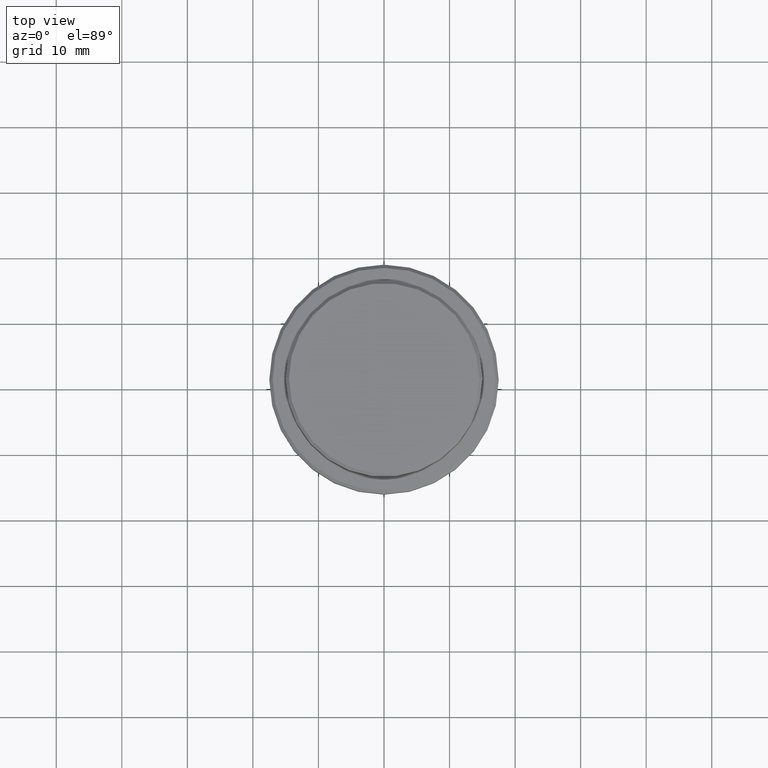
[diagram: clean part render]
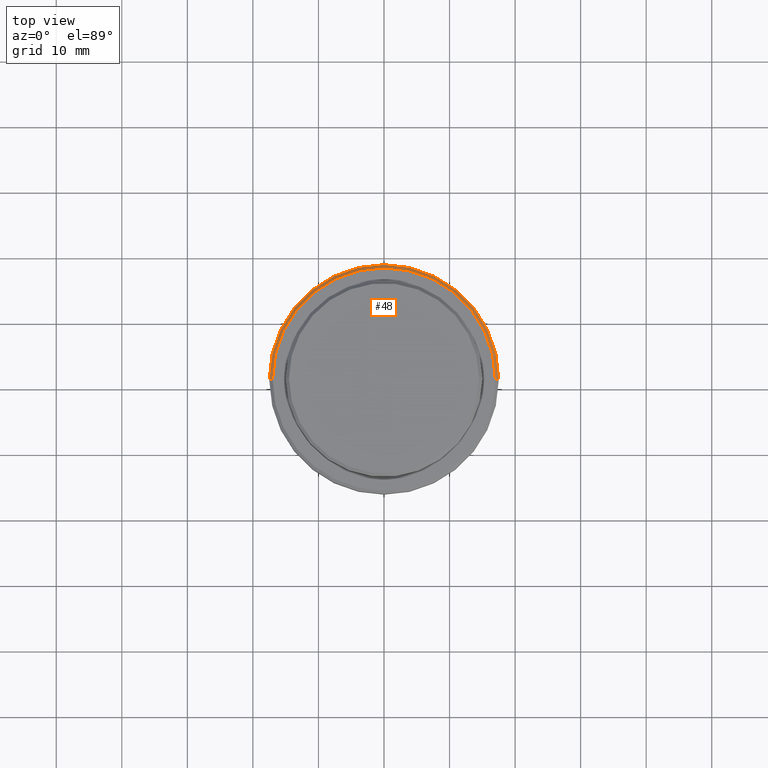
[diagram: same view with one face highlighted and labeled with its STEP entity id]
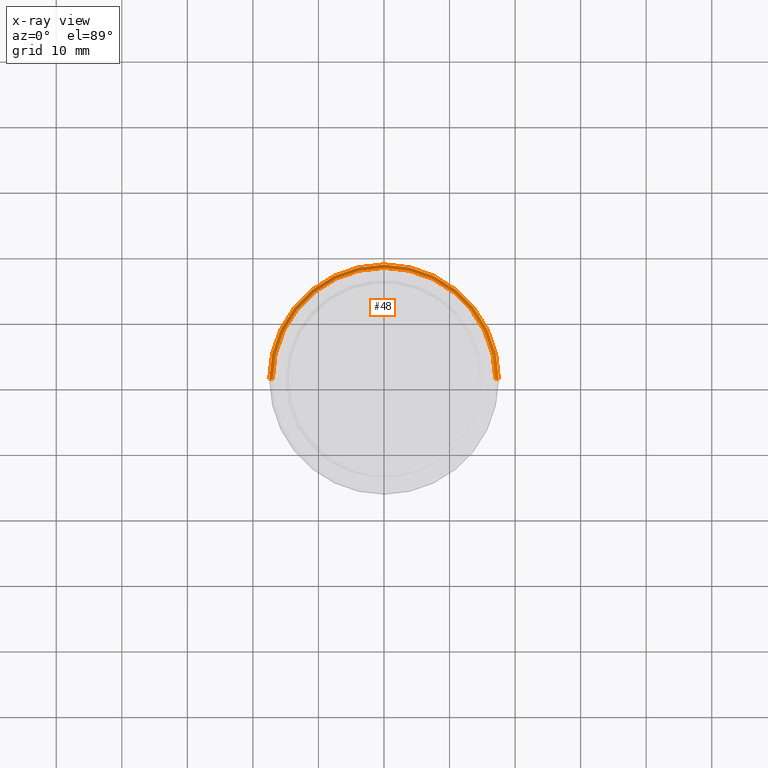
[diagram: x-ray of the same camera — body ghosted, the highlighted face saturated]
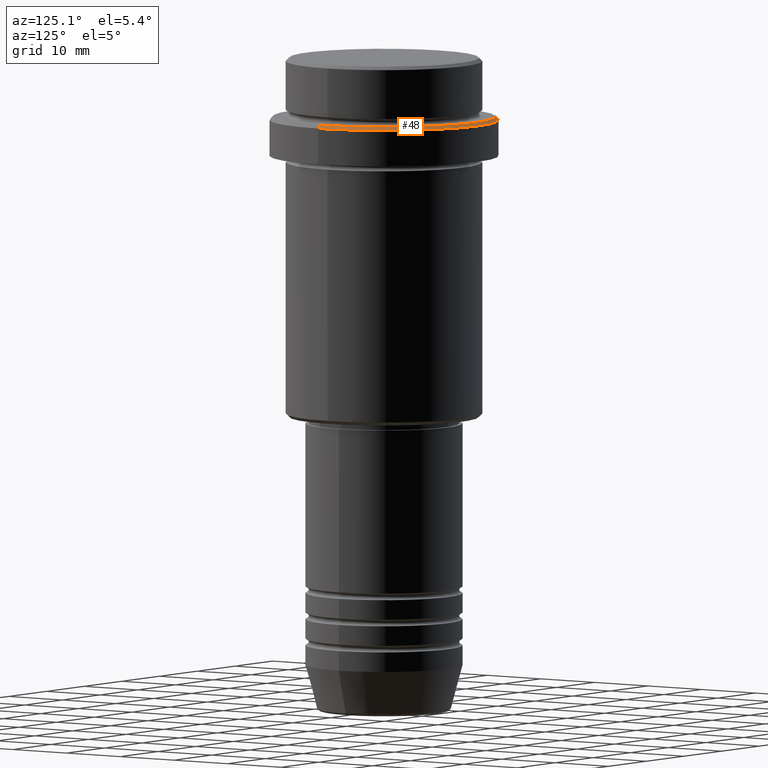
[diagram: same view with one face highlighted and labeled with its STEP entity id]
A machine part, top view. The second image highlights one B-rep face of the part: STEP entity #48.
The next image is the same camera in x-ray: the body ghosted, the highlighted face saturated — about 0% of this face is hidden behind the body in this view.
A second angle (auxiliary view) of the same face is appended — the face is thin or edge-on in the first view.
In plain terms, the highlighted conical surface has half-angle 45 deg.
Its self-contained STEP definition (entity closure, byte-faithful):
#48 = ADVANCED_FACE ( 'NONE', ( #1083 ), #774, .T. ) ;
#49 = EDGE_CURVE ( 'NONE', #151, #1048, #661, .T. ) ;
#78 = VERTEX_POINT ( 'NONE', #316 ) ;
#136 = DIRECTION ( 'NONE',  ( -0.000000000000000000, -0.000000000000000000, 1.000000000000000000 ) ) ;
#151 = VERTEX_POINT ( 'NONE', #1054 ) ;
#316 = CARTESIAN_POINT ( 'NONE',  ( -16.99999999999997513, 0.000000000000000000, -9.000000000000000000 ) ) ;
#330 = CARTESIAN_POINT ( 'NONE',  ( -16.99999999999997513, 0.000000000000000000, -9.000000000000000000 ) ) ;
#346 = ORIENTED_EDGE ( 'NONE', *, *, #49, .F. ) ;
#383 = AXIS2_PLACEMENT_3D ( 'NONE', #1410, #423, #1400 ) ;
#403 = EDGE_CURVE ( 'NONE', #1191, #1048, #857, .T. ) ;
#423 = DIRECTION ( 'NONE',  ( 0.000000000000000000, 0.000000000000000000, -1.000000000000000000 ) ) ;
#477 = CARTESIAN_POINT ( 'NONE',  ( 0.000000000000000000, 0.000000000000000000, -9.000000000000000000 ) ) ;
#483 = ORIENTED_EDGE ( 'NONE', *, *, #403, .T. ) ;
#490 = AXIS2_PLACEMENT_3D ( 'NONE', #477, #136, #1264 ) ;
#504 = VECTOR ( 'NONE', #996, 1000.000000000000114 ) ;
#619 = EDGE_LOOP ( 'NONE', ( #822, #483, #346, #898 ) ) ;
#661 = CIRCLE ( 'NONE', #383, 17.50000000000000000 ) ;
#676 = EDGE_CURVE ( 'NONE', #78, #151, #881, .T. ) ;
#774 = CONICAL_SURFACE ( 'NONE', #1064, 16.99999999999997513, 0.7853981633974482790 ) ;
#822 = ORIENTED_EDGE ( 'NONE', *, *, #1398, .F. ) ;
#857 = LINE ( 'NONE', #1312, #504 ) ;
#860 = DIRECTION ( 'NONE',  ( 0.000000000000000000, 0.000000000000000000, -1.000000000000000000 ) ) ;
#881 = LINE ( 'NONE', #330, #1296 ) ;
#898 = ORIENTED_EDGE ( 'NONE', *, *, #676, .F. ) ;
#967 = CARTESIAN_POINT ( 'NONE',  ( 0.000000000000000000, 0.000000000000000000, -9.000000000000000000 ) ) ;
#988 = DIRECTION ( 'NONE',  ( -1.000000000000000000, 0.000000000000000000, 0.000000000000000000 ) ) ;
#996 = DIRECTION ( 'NONE',  ( 0.7071067811865474617, 8.659560562354932858E-17, -0.7071067811865474617 ) ) ;
#1048 = VERTEX_POINT ( 'NONE', #1352 ) ;
#1054 = CARTESIAN_POINT ( 'NONE',  ( -17.50000000000000000, 2.143131898507868248E-15, -9.500000000000026645 ) ) ;
#1064 = AXIS2_PLACEMENT_3D ( 'NONE', #967, #860, #988 ) ;
#1083 = FACE_OUTER_BOUND ( 'NONE', #619, .T. ) ;
#1161 = CIRCLE ( 'NONE', #490, 16.99999999999997513 ) ;
#1191 = VERTEX_POINT ( 'NONE', #1335 ) ;
#1233 = DIRECTION ( 'NONE',  ( -0.7071067811865474617, 0.000000000000000000, -0.7071067811865474617 ) ) ;
#1264 = DIRECTION ( 'NONE',  ( 1.000000000000000000, 0.000000000000000000, 0.000000000000000000 ) ) ;
#1296 = VECTOR ( 'NONE', #1233, 1000.000000000000114 ) ;
#1312 = CARTESIAN_POINT ( 'NONE',  ( 16.99999999999997513, 2.081899558550497519E-15, -9.000000000000000000 ) ) ;
#1335 = CARTESIAN_POINT ( 'NONE',  ( 16.99999999999997513, 2.112515728529182883E-15, -9.000000000000000000 ) ) ;
#1352 = CARTESIAN_POINT ( 'NONE',  ( 17.50000000000000000, 0.000000000000000000, -9.500000000000026645 ) ) ;
#1398 = EDGE_CURVE ( 'NONE', #1191, #78, #1161, .T. ) ;
#1400 = DIRECTION ( 'NONE',  ( 1.000000000000000000, 0.000000000000000000, 0.000000000000000000 ) ) ;
#1410 = CARTESIAN_POINT ( 'NONE',  ( 0.000000000000000000, 0.000000000000000000, -9.500000000000026645 ) ) ;